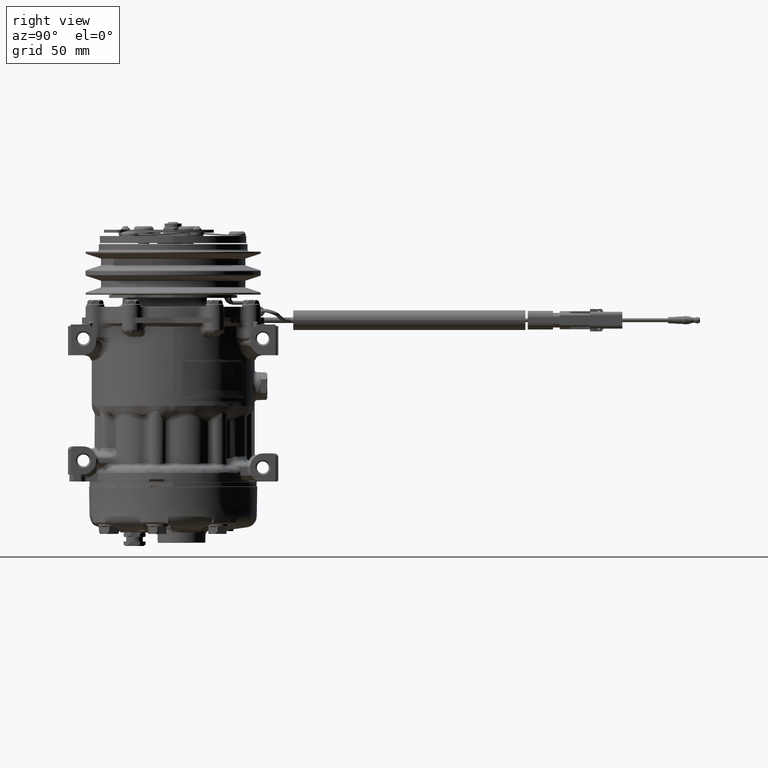
[diagram: clean part render]
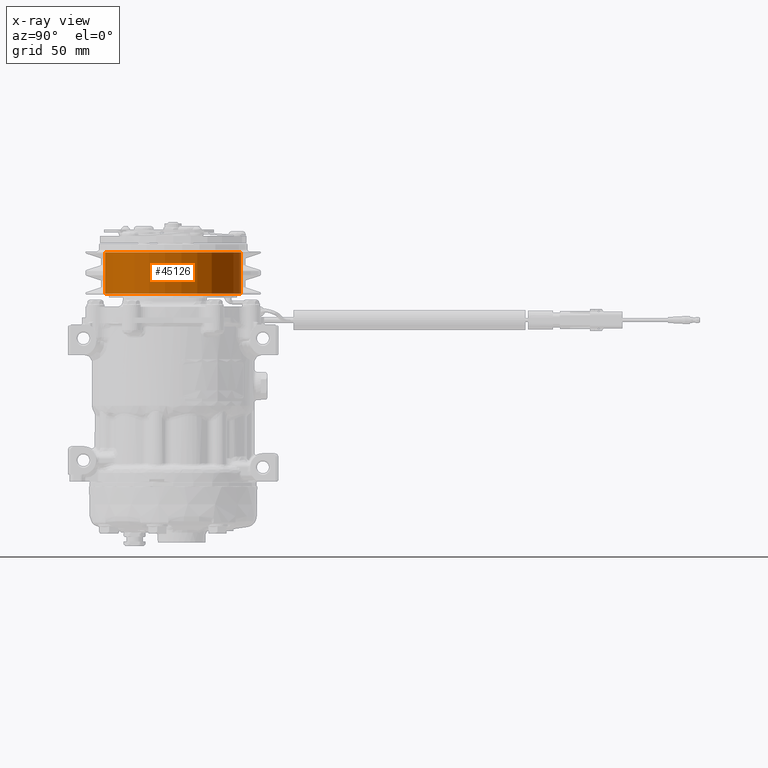
[diagram: x-ray — body ghosted, one internal face saturated and labeled with its STEP entity id]
A machine part, right view, then the same camera in x-ray: the body is ghosted and one INTERNAL B-rep face — a face not visible from any outside direction — is saturated and labeled: STEP entity #45126.
In plain terms, the highlighted cylindrical surface (partial cylindrical patch) has radius 48.5 mm, axis along (0, 0, -1).
Its self-contained STEP definition (entity closure, byte-faithful):
#45103 = ORIENTED_EDGE ( 'NONE', *, *, #45104, .T. ) ;
#45104 = EDGE_CURVE ( 'NONE', #45110, #45226, #134641, .T. ) ;
#45105 = EDGE_CURVE ( 'NONE', #45110, #45225, #134637, .T. ) ;
#45107 = EDGE_LOOP ( 'NONE', ( #45109, #45103, #45111, #45113 ) ) ;
#45108 = EDGE_CURVE ( 'NONE', #45226, #45224, #134628, .T. ) ;
#45109 = ORIENTED_EDGE ( 'NONE', *, *, #45105, .F. ) ;
#45110 = VERTEX_POINT ( 'NONE', #134623 ) ;
#45111 = ORIENTED_EDGE ( 'NONE', *, *, #45108, .T. ) ;
#45113 = ORIENTED_EDGE ( 'NONE', *, *, #45115, .F. ) ;
#45115 = EDGE_CURVE ( 'NONE', #45225, #45224, #134622, .T. ) ;
#45126 = ADVANCED_FACE ( 'NONE', ( #134617 ), #134615, .F. ) ;
#45224 = VERTEX_POINT ( 'NONE', #134755 ) ;
#45225 = VERTEX_POINT ( 'NONE', #134754 ) ;
#45226 = VERTEX_POINT ( 'NONE', #134753 ) ;
#134614 = AXIS2_PLACEMENT_3D ( 'NONE', #134616, #134676, #134675 ) ;
#134615 = CYLINDRICAL_SURFACE ( 'NONE', #134614, 48.50000000000012800 ) ;
#134616 = CARTESIAN_POINT ( 'NONE',  ( 1.018713123910830500, -0.0001151383018371809900, 70.71192294319722300 ) ) ;
#134617 = FACE_OUTER_BOUND ( 'NONE', #45107, .T. ) ;
#134619 = DIRECTION ( 'NONE',  ( 3.491483361109382100E-015, 2.358328250533916200E-015, -1.000000000000000000 ) ) ;
#134620 = VECTOR ( 'NONE', #134619, 1000.000000000000000 ) ;
#134621 = CARTESIAN_POINT ( 'NONE',  ( 1.018713123910830500, -48.50011513830196500, 70.71192294319710900 ) ) ;
#134622 = LINE ( 'NONE', #134621, #134620 ) ;
#134623 = CARTESIAN_POINT ( 'NONE',  ( 1.018713123910713400, 48.49988486169827000, 105.7431580153180900 ) ) ;
#134624 = DIRECTION ( 'NONE',  ( 0.0000000000000000000, -1.000000000000000000, -2.289119638402380400E-015 ) ) ;
#134625 = DIRECTION ( 'NONE',  ( 3.491483361109382100E-015, 2.358328250533916200E-015, -1.000000000000000000 ) ) ;
#134626 = CARTESIAN_POINT ( 'NONE',  ( 1.018713123910830500, -0.0001151383018371809900, 76.20315801531796800 ) ) ;
#134627 = AXIS2_PLACEMENT_3D ( 'NONE', #134626, #134625, #134624 ) ;
#134628 = CIRCLE ( 'NONE', #134627, 48.50000000000008500 ) ;
#134633 = DIRECTION ( 'NONE',  ( 0.0000000000000000000, -1.000000000000000000, -2.289119638402378500E-015 ) ) ;
#134634 = DIRECTION ( 'NONE',  ( 3.491483361109382100E-015, 2.358328250533916200E-015, -1.000000000000000000 ) ) ;
#134635 = CARTESIAN_POINT ( 'NONE',  ( 1.018713123910719400, -0.0001151383018926921400, 105.7431580153179700 ) ) ;
#134636 = AXIS2_PLACEMENT_3D ( 'NONE', #134635, #134634, #134633 ) ;
#134637 = CIRCLE ( 'NONE', #134636, 48.50000000000012800 ) ;
#134638 = DIRECTION ( 'NONE',  ( 3.491483361109382100E-015, 2.358328250533916200E-015, -1.000000000000000000 ) ) ;
#134639 = VECTOR ( 'NONE', #134638, 1000.000000000000000 ) ;
#134640 = CARTESIAN_POINT ( 'NONE',  ( 1.018713123910824700, 48.49988486169829100, 70.71192294319733700 ) ) ;
#134641 = LINE ( 'NONE', #134640, #134639 ) ;
#134675 = DIRECTION ( 'NONE',  ( 0.0000000000000000000, -1.000000000000000000, -2.289119638402378500E-015 ) ) ;
#134676 = DIRECTION ( 'NONE',  ( 3.491483361109382100E-015, 2.358328250533916200E-015, -1.000000000000000000 ) ) ;
#134753 = CARTESIAN_POINT ( 'NONE',  ( 1.018713123910753900, 48.49988486169824900, 76.20315801531806700 ) ) ;
#134754 = CARTESIAN_POINT ( 'NONE',  ( 1.018713123910719400, -48.50011513830205700, 105.7431580153178600 ) ) ;
#134755 = CARTESIAN_POINT ( 'NONE',  ( 1.018713123910830500, -48.50011513830192200, 76.20315801531785400 ) ) ;